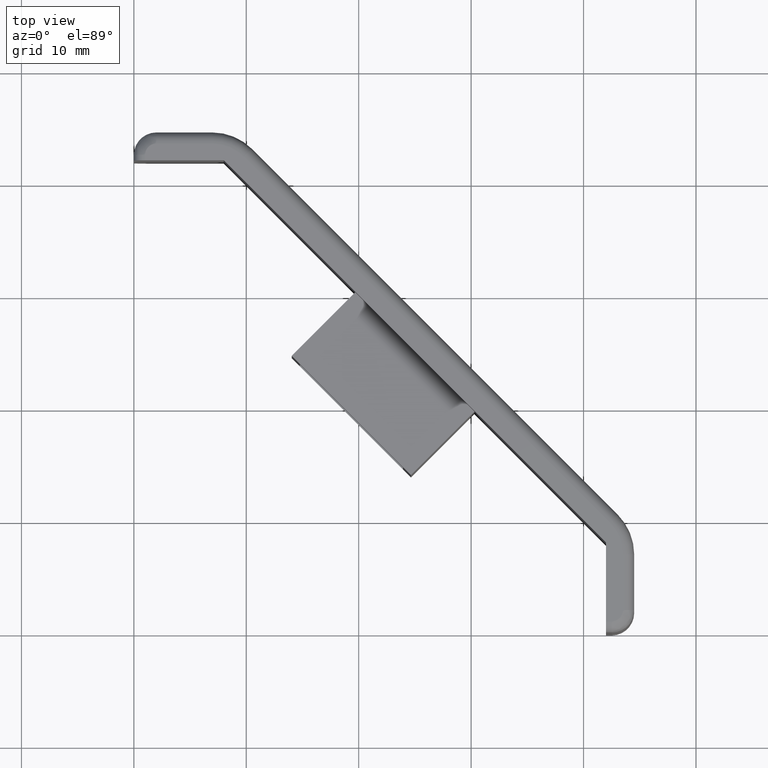
[diagram: clean part render]
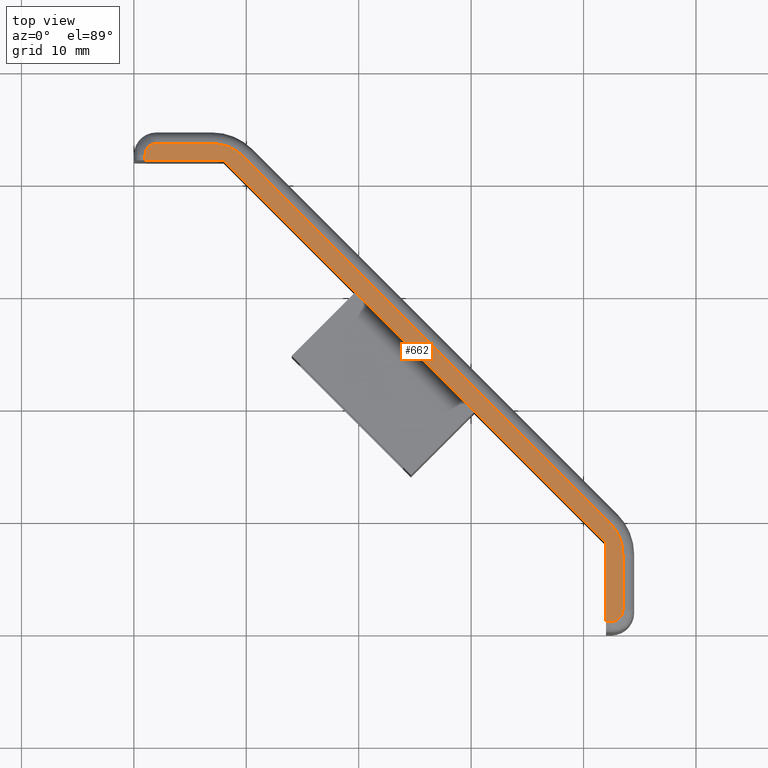
[diagram: same view with one face highlighted and labeled with its STEP entity id]
A machine part, top view. The second image highlights one B-rep face of the part: STEP entity #662.
In plain terms, the highlighted planar face has unit normal (0, 0, 1).
Its self-contained STEP definition (entity closure, byte-faithful):
#42=FACE_OUTER_BOUND('',#84,.T.);
#84=EDGE_LOOP('',(#446,#447,#448,#449,#450,#451,#452,#453,#454,#455,#456,
#457));
#128=LINE('',#998,#190);
#129=LINE('',#1002,#191);
#130=LINE('',#1004,#192);
#131=LINE('',#1006,#193);
#132=LINE('',#1008,#194);
#133=LINE('',#1010,#195);
#134=LINE('',#1014,#196);
#135=LINE('',#1017,#197);
#190=VECTOR('',#786,4.96446609406726);
#191=VECTOR('',#789,0.500000000000007);
#192=VECTOR('',#790,6.99999999999999);
#193=VECTOR('',#791,48.0832611206852);
#194=VECTOR('',#792,7.00000000000001);
#195=VECTOR('',#793,0.499999999999998);
#196=VECTOR('',#796,4.96446609406726);
#197=VECTOR('',#799,46.0121933088198);
#252=CIRCLE('',#707,4.);
#253=CIRCLE('',#708,1.);
#254=CIRCLE('',#709,1.);
#255=CIRCLE('',#710,4.);
#288=VERTEX_POINT('',#994);
#289=VERTEX_POINT('',#995);
#290=VERTEX_POINT('',#997);
#291=VERTEX_POINT('',#999);
#292=VERTEX_POINT('',#1001);
#293=VERTEX_POINT('',#1003);
#294=VERTEX_POINT('',#1005);
#295=VERTEX_POINT('',#1007);
#296=VERTEX_POINT('',#1009);
#297=VERTEX_POINT('',#1011);
#298=VERTEX_POINT('',#1013);
#299=VERTEX_POINT('',#1015);
#348=EDGE_CURVE('',#288,#289,#252,.T.);
#349=EDGE_CURVE('',#288,#290,#128,.T.);
#350=EDGE_CURVE('',#290,#291,#253,.T.);
#351=EDGE_CURVE('',#291,#292,#129,.T.);
#352=EDGE_CURVE('',#292,#293,#130,.T.);
#353=EDGE_CURVE('',#293,#294,#131,.T.);
#354=EDGE_CURVE('',#294,#295,#132,.T.);
#355=EDGE_CURVE('',#295,#296,#133,.T.);
#356=EDGE_CURVE('',#296,#297,#254,.T.);
#357=EDGE_CURVE('',#297,#298,#134,.T.);
#358=EDGE_CURVE('',#299,#298,#255,.T.);
#359=EDGE_CURVE('',#299,#289,#135,.T.);
#446=ORIENTED_EDGE('',*,*,#348,.F.);
#447=ORIENTED_EDGE('',*,*,#349,.T.);
#448=ORIENTED_EDGE('',*,*,#350,.T.);
#449=ORIENTED_EDGE('',*,*,#351,.T.);
#450=ORIENTED_EDGE('',*,*,#352,.T.);
#451=ORIENTED_EDGE('',*,*,#353,.T.);
#452=ORIENTED_EDGE('',*,*,#354,.T.);
#453=ORIENTED_EDGE('',*,*,#355,.T.);
#454=ORIENTED_EDGE('',*,*,#356,.T.);
#455=ORIENTED_EDGE('',*,*,#357,.T.);
#456=ORIENTED_EDGE('',*,*,#358,.F.);
#457=ORIENTED_EDGE('',*,*,#359,.T.);
#642=PLANE('',#706);
#662=ADVANCED_FACE('',(#42),#642,.T.);
#706=AXIS2_PLACEMENT_3D('',#993,#782,#783);
#707=AXIS2_PLACEMENT_3D('',#996,#784,#785);
#708=AXIS2_PLACEMENT_3D('',#1000,#787,#788);
#709=AXIS2_PLACEMENT_3D('',#1012,#794,#795);
#710=AXIS2_PLACEMENT_3D('',#1016,#797,#798);
#782=DIRECTION('center_axis',(5.41087747005995E-65,5.59393057180535E-160,
1.));
#783=DIRECTION('ref_axis',(1.,0.,0.));
#784=DIRECTION('center_axis',(5.41087747005995E-65,0.,-1.));
#785=DIRECTION('ref_axis',(1.,-8.67361737988404E-15,5.41087747005995E-65));
#786=DIRECTION('',(-1.,-5.16915288024751E-96,5.41087747005995E-65));
#787=DIRECTION('center_axis',(-5.41087747005995E-65,0.,1.));
#788=DIRECTION('ref_axis',(1.,0.,5.41087747005995E-65));
#789=DIRECTION('',(1.71444889535133E-16,-1.,0.));
#790=DIRECTION('',(1.,5.16915288024751E-96,-5.41087747005995E-65));
#791=DIRECTION('',(0.707106781186547,-0.707106781186547,1.09476442525376E-47));
#792=DIRECTION('',(-5.16915288024751E-96,-1.,0.));
#793=DIRECTION('',(1.,5.16915288024751E-96,-5.41087747005995E-65));
#794=DIRECTION('center_axis',(-5.41087747005995E-65,0.,1.));
#795=DIRECTION('ref_axis',(1.,0.,5.41087747005995E-65));
#796=DIRECTION('',(5.16915288024751E-96,1.,0.));
#797=DIRECTION('center_axis',(5.41087747005995E-65,0.,-1.));
#798=DIRECTION('ref_axis',(1.,-3.46944695195361E-15,5.41087747005995E-65));
#799=DIRECTION('',(-0.707106781186547,0.707106781186547,0.));
#993=CARTESIAN_POINT('Origin',(5.55111512312578E-14,42.,8.25000000000001));
#994=CARTESIAN_POINT('',(6.96446609406731,43.5,8.25000000000001));
#995=CARTESIAN_POINT('',(9.79289321881351,42.3284271247462,8.25000000000001));
#996=CARTESIAN_POINT('Origin',(6.96446609406731,39.5,8.25000000000001));
#997=CARTESIAN_POINT('',(2.00000000000006,43.5,8.25000000000001));
#998=CARTESIAN_POINT('',(2.00000000000006,43.5,8.25000000000001));
#999=CARTESIAN_POINT('',(1.00000000000006,42.5,8.25000000000001));
#1000=CARTESIAN_POINT('Origin',(2.00000000000006,42.5,8.25000000000001));
#1001=CARTESIAN_POINT('',(1.00000000000006,42.,8.25000000000001));
#1002=CARTESIAN_POINT('',(1.00000000000006,42.,8.25000000000001));
#1003=CARTESIAN_POINT('',(8.00000000000005,42.,8.25000000000001));
#1004=CARTESIAN_POINT('',(5.55111512312578E-14,42.,8.25000000000001));
#1005=CARTESIAN_POINT('',(42.,8.00000000000001,8.25000000000001));
#1006=CARTESIAN_POINT('',(8.00000000000005,42.,8.25000000000001));
#1007=CARTESIAN_POINT('',(42.,1.,8.25000000000001));
#1008=CARTESIAN_POINT('',(42.,8.00000000000001,8.25000000000001));
#1009=CARTESIAN_POINT('',(42.5,1.,8.25000000000001));
#1010=CARTESIAN_POINT('',(42.5,1.,8.25000000000001));
#1011=CARTESIAN_POINT('',(43.5,2.,8.25000000000001));
#1012=CARTESIAN_POINT('Origin',(42.5,2.,8.25000000000001));
#1013=CARTESIAN_POINT('',(43.5,6.96446609406726,8.25000000000001));
#1014=CARTESIAN_POINT('',(43.5,9.03553390593276,8.25000000000001));
#1015=CARTESIAN_POINT('',(42.3284271247462,9.79289321881344,8.25000000000001));
#1016=CARTESIAN_POINT('Origin',(39.5,6.96446609406726,8.25000000000001));
#1017=CARTESIAN_POINT('',(8.32842712474624,43.7928932188135,8.25000000000001));